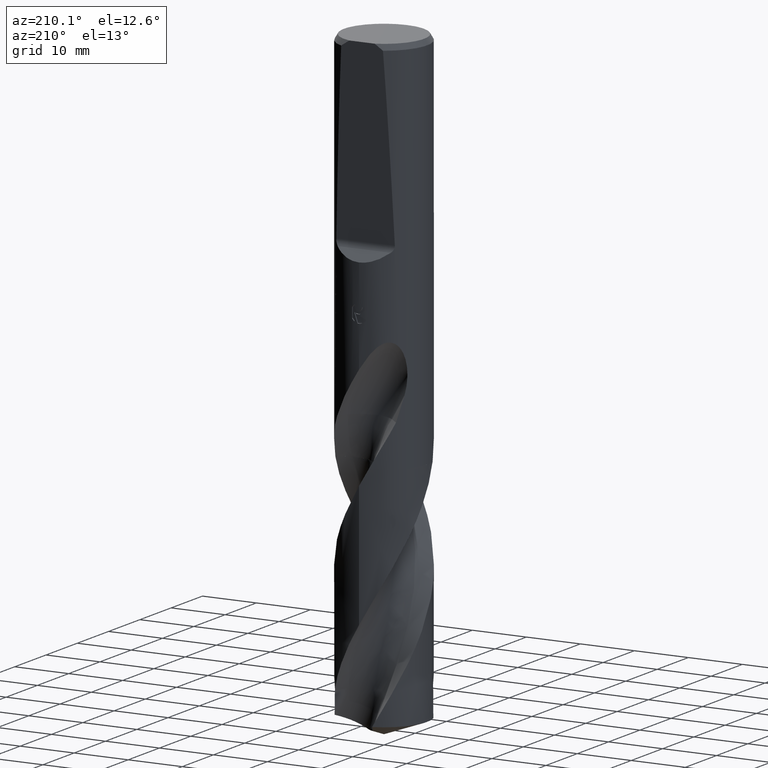
[diagram: clean part render]
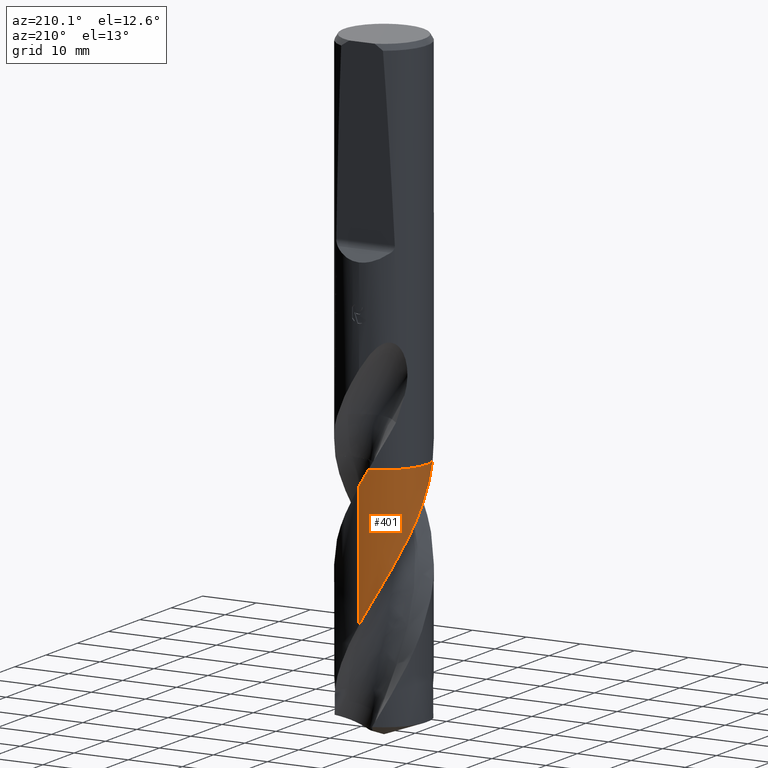
[diagram: same view with one face highlighted and labeled with its STEP entity id]
A machine part, auxiliary view. The second image highlights one B-rep face of the part: STEP entity #401.
In plain terms, the highlighted conical surface has half-angle 0 deg.
Its self-contained STEP definition (entity closure, byte-faithful):
#361=EDGE_CURVE('',#471,#485,#886,.T.);
#401=ADVANCED_FACE('',(#930),#931,.T.);
#471=VERTEX_POINT('',#1008);
#485=VERTEX_POINT('',#1023);
#507=EDGE_CURVE('',#485,#729,#1046,.T.);
#565=VERTEX_POINT('',#1107);
#599=EDGE_CURVE('',#729,#745,#1144,.T.);
#637=VERTEX_POINT('',#1186);
#699=EDGE_CURVE('',#565,#471,#1252,.T.);
#729=VERTEX_POINT('',#1286);
#733=EDGE_CURVE('',#637,#565,#1290,.T.);
#745=VERTEX_POINT('',#1305);
#761=EDGE_CURVE('',#745,#637,#1321,.T.);
#886=B_SPLINE_CURVE_WITH_KNOTS('',3,(#2675,#2676,#2677,#2678),.UNSPECIFIED.,.F.,.F.,(4,4),(0.0,0.013752877784012),.UNSPECIFIED.);
#930=FACE_OUTER_BOUND('',#3223,.T.);
#931=CONICAL_SURFACE('',#3224,7.99995,2.364723725352E-006);
#1008=CARTESIAN_POINT('',(-1.67981348176977,7.82154886684629,-69.8));
#1023=CARTESIAN_POINT('',(-1.67697244394199,7.82215850142622,-69.8049999999999));
#1046=B_SPLINE_CURVE_WITH_KNOTS('',3,(#3846,#3847,#3848,#3849,#3850,#3851,#3852,#3853,#3854,#3855,#3856,#3857,#3858,#3859,#3860,#3861,#3862,#3863,#3864,#3865,#3866,#3867,#3868,#3869,#3870,#3871,#3872,#3873,#3874,#3875,#3876,#3877,#3878,#3879,#3880,#3881,#3882,#3883,#3884,#3885,#3886,#3887,#3888,#3889,#3890,#3891,#3892,#3893,#3894,#3895,#3896,#3897),.UNSPECIFIED.,.F.,.F.,(4,2,2,2,2,2,2,2,2,2,2,2,2,2,2,2,2,2,2,2,2,2,2,2,2,4),(0.0,1.27051730286432,3.96646854480239,5.51157217282943,7.05404440528282,10.1371378918844,10.3290807501614,13.4034358372347,14.9439217900769,17.8075973009075,17.9859906336772,20.8432027542659,22.2753112592827,25.1362857660209,25.8509122014461,28.7245608353295,29.9842632062922,32.3474459365253,34.4169737224137,36.2289984814503,37.8143179372547,40.5895410475255,41.1098273184683,43.0617453367982,45.9921869063749,48.9211548549457),.UNSPECIFIED.);
#1107=CARTESIAN_POINT('',(-7.65231159553623,-2.33249378451943,-69.8));
#1144=LINE('',#4681,#4682);
#1186=CARTESIAN_POINT('',(-7.65315511599825,-2.32972465532846,-69.805));
#1252=CIRCLE('',#6820,7.9999);
#1286=CARTESIAN_POINT('',(5.72739119061951E-015,7.99990689616698,-72.7162675143948));
#1290=B_SPLINE_CURVE_WITH_KNOTS('',3,(#7104,#7105,#7106,#7107),.UNSPECIFIED.,.F.,.F.,(4,4),(0.0,0.0177522945239315),.UNSPECIFIED.);
#1305=CARTESIAN_POINT('',(1.89754420758428E-011,7.99996084194975,-95.5289885932862));
#1321=B_SPLINE_CURVE_WITH_KNOTS('',3,(#7406,#7407,#7408,#7409,#7410,#7411,#7412,#7413,#7414,#7415,#7416,#7417,#7418,#7419,#7420,#7421,#7422,#7423,#7424,#7425,#7426,#7427,#7428,#7429,#7430,#7431,#7432,#7433,#7434,#7435,#7436,#7437,#7438,#7439,#7440,#7441,#7442,#7443,#7444,#7445,#7446,#7447,#7448,#7449,#7450,#7451,#7452,#7453,#7454,#7455,#7456,#7457,#7458,#7459,#7460,#7461,#7462,#7463,#7464,#7465,#7466,#7467),.UNSPECIFIED.,.F.,.F.,(4,2,2,2,2,2,2,2,2,2,2,2,2,2,2,2,2,2,2,2,2,2,2,2,2,2,2,2,2,2,4),(0.0,4.03119896320147,4.51299643171253,6.34896058069356,7.569833306916,8.73994153396919,10.6008235458961,11.5670182466299,12.4807597280399,14.4082638178036,15.3786518693126,16.4731307652434,18.2962473498897,20.1690397273523,22.0952049830949,24.0103927203589,25.766254646335,27.2014697096268,27.3010410731199,30.0331241361555,32.2658099796229,34.3488900971072,35.2588120125713,38.6814882075598,38.832342711728,41.1686782478763,42.1379179458796,42.9852840426844,45.9588926378141,47.4431304472618,48.9243446498629),.UNSPECIFIED.);
#2675=CARTESIAN_POINT('',(-1.67981348176982,7.8215488668463,-69.8));
#2676=CARTESIAN_POINT('',(-1.67756141846702,7.82203254614609,-69.8039635847169));
#2677=CARTESIAN_POINT('',(-1.67530916830837,7.82251524805388,-69.8079271818838));
#2678=CARTESIAN_POINT('',(-1.67305673199951,7.82299697247804,-69.8118907925588));
#3223=EDGE_LOOP('',(#7701,#7702,#7703,#7704,#7705,#7706));
#3224=AXIS2_PLACEMENT_3D('',#7707,#7708,#7709);
#3846=CARTESIAN_POINT('',(-1.67849383798376,7.82183217243396,-69.8023225095045));
#3847=CARTESIAN_POINT('',(-1.4704371492189,7.86648012565926,-70.1684865570865));
#3848=CARTESIAN_POINT('',(-1.26086920143506,7.90276883897967,-70.5348819784031));
#3849=CARTESIAN_POINT('',(-0.603475236507624,7.98983352343572,-71.6782461498771));
#3850=CARTESIAN_POINT('',(-0.152242433013857,8.01117034564737,-72.4537500739582));
#3851=CARTESIAN_POINT('',(0.556961162588771,7.98468489946156,-73.6758638894698));
#3852=CARTESIAN_POINT('',(0.81472088483901,7.96251524980937,-74.1206847396728));
#3853=CARTESIAN_POINT('',(1.3267594956836,7.89334749033179,-75.0104099080499));
#3854=CARTESIAN_POINT('',(1.58068031788886,7.84644088291161,-75.4546065332027));
#3855=CARTESIAN_POINT('',(2.33385367731438,7.66927345604132,-76.7877371405339));
#3856=CARTESIAN_POINT('',(2.82341210749603,7.50288497591098,-77.6743698086454));
#3857=CARTESIAN_POINT('',(3.32291312463908,7.27722570277805,-78.6181108935414));
#3858=CARTESIAN_POINT('',(3.35210599830845,7.26382495392821,-78.673416650395));
#3859=CARTESIAN_POINT('',(3.8475102580408,7.03279119579346,-79.614709280393));
#3860=CARTESIAN_POINT('',(4.2917607497998,6.77084315983122,-80.4994487472376));
#3861=CARTESIAN_POINT('',(4.9161968868441,6.31635410265131,-81.8294598761166));
#3862=CARTESIAN_POINT('',(5.11715150864102,6.15467777257267,-82.2730724607415));
#3863=CARTESIAN_POINT('',(5.66828082201436,5.66560315823584,-83.5425205479753));
#3864=CARTESIAN_POINT('',(5.99741965364389,5.31597969596658,-84.3663396379129));
#3865=CARTESIAN_POINT('',(6.31176264142755,4.915437740202,-85.2430665309164));
#3866=CARTESIAN_POINT('',(6.33006359566202,4.89184756203063,-85.2944761180623));
#3867=CARTESIAN_POINT('',(6.63923196268416,4.48868534906526,-86.1694017419798));
#3868=CARTESIAN_POINT('',(6.89563558934732,4.08386508873248,-86.9919623199943));
#3869=CARTESIAN_POINT('',(7.22395989720431,3.44542519548851,-88.2282989020718));
#3870=CARTESIAN_POINT('',(7.32393190888616,3.22747062102742,-88.6407038211166));
#3871=CARTESIAN_POINT('',(7.59382243644842,2.56168501043691,-89.8782330733037));
#3872=CARTESIAN_POINT('',(7.73351929852918,2.10266927620526,-90.7015883078468));
#3873=CARTESIAN_POINT('',(7.85576082746143,1.51676008798964,-91.7322180976283));
#3874=CARTESIAN_POINT('',(7.87756009486117,1.39913887136389,-91.9381308903172));
#3875=CARTESIAN_POINT('',(7.97373244040805,0.806337042298322,-92.9725083487111));
#3876=CARTESIAN_POINT('',(8.00779074699412,0.325559950217122,-93.7997280737574));
#3877=CARTESIAN_POINT('',(7.9943547240745,-0.366211538356224,-94.9912166158297));
#3878=CARTESIAN_POINT('',(7.98192667129978,-0.576764012981701,-95.3540876027758));
#3879=CARTESIAN_POINT('',(7.92231727501749,-1.18012940022822,-96.3985480993691));
#3880=CARTESIAN_POINT('',(7.85429732890172,-1.57032906102446,-97.0791517982732));
#3881=CARTESIAN_POINT('',(7.67306861206464,-2.28987151403489,-98.3570025762126));
#3882=CARTESIAN_POINT('',(7.56673763753815,-2.61991000108871,-98.9528534196423));
#3883=CARTESIAN_POINT('',(7.3278637033378,-3.22395897252188,-100.071938681329));
#3884=CARTESIAN_POINT('',(7.20038873587797,-3.49942582832175,-100.593964426066));
#3885=CARTESIAN_POINT('',(6.9325893795096,-4.00115444396327,-101.57334118483));
#3886=CARTESIAN_POINT('',(6.79607239350315,-4.22887811731923,-102.02990977461));
#3887=CARTESIAN_POINT('',(6.3902009316168,-4.83536064456716,-103.287106747562));
#3888=CARTESIAN_POINT('',(6.09871598664392,-5.19819444686474,-104.085881652984));
#3889=CARTESIAN_POINT('',(5.71708612267639,-5.59662813284819,-105.035917625444));
#3890=CARTESIAN_POINT('',(5.65581758483874,-5.65853792326001,-105.185877281304));
#3891=CARTESIAN_POINT('',(5.35995788213228,-5.9478883358092,-105.898625423372));
#3892=CARTESIAN_POINT('',(5.11258122289744,-6.16182298630118,-106.461102687264));
#3893=CARTESIAN_POINT('',(4.46283272782344,-6.65759718653386,-107.868735786888));
#3894=CARTESIAN_POINT('',(4.04639222723573,-6.91859864991595,-108.711219138915));
#3895=CARTESIAN_POINT('',(3.17139742994246,-7.36086665146706,-110.400814118732));
#3896=CARTESIAN_POINT('',(2.71441280435184,-7.54139015727414,-111.243925128172));
#3897=CARTESIAN_POINT('',(2.24355385134965,-7.67896256769718,-112.08823812587));
#4681=CARTESIAN_POINT('',(-9.79720773085508E-016,7.99995,-90.9441190629352));
#4682=VECTOR('',#7910,1.0);
#6820=AXIS2_PLACEMENT_3D('',#7989,#7990,#7991);
#7104=CARTESIAN_POINT('',(-7.65490013211447,-2.32398462960369,-69.8153635195842));
#7105=CARTESIAN_POINT('',(-7.65403892292571,-2.32682129787016,-69.8102422279961));
#7106=CARTESIAN_POINT('',(-7.65317607750963,-2.32965768326373,-69.8051210543126));
#7107=CARTESIAN_POINT('',(-7.65231159553626,-2.33249378451941,-69.8));
#7406=CARTESIAN_POINT('',(7.46189764271833,2.88445550660688,-112.08823812587));
#7407=CARTESIAN_POINT('',(7.21896305262063,3.51290376905606,-110.925631610887));
#7408=CARTESIAN_POINT('',(6.89756025784077,4.1082519469634,-109.776819733825));
#7409=CARTESIAN_POINT('',(6.45843918671777,4.7217490330369,-108.47503485101));
#7410=CARTESIAN_POINT('',(6.41062660778394,4.78646028831958,-108.336015768115));
#7411=CARTESIAN_POINT('',(6.17587633496912,5.09435428257596,-107.667719959679));
#7412=CARTESIAN_POINT('',(5.97585841705735,5.32760760201709,-107.139714626044));
#7413=CARTESIAN_POINT('',(5.62088808110172,5.69624194863869,-106.259028075824));
#7414=CARTESIAN_POINT('',(5.47359521766105,5.83791184207687,-105.907619120124));
#7415=CARTESIAN_POINT('',(5.17499117302718,6.10389256234493,-105.218543493876));
#7416=CARTESIAN_POINT('',(5.02419676236537,6.22860172447748,-104.880839424982));
#7417=CARTESIAN_POINT('',(4.62192685480721,6.53715294073292,-104.00728460891));
#7418=CARTESIAN_POINT('',(4.36400498866502,6.71209268813819,-103.472304704355));
#7419=CARTESIAN_POINT('',(3.95747183384713,6.95443914894759,-102.657809133801));
#7420=CARTESIAN_POINT('',(3.8161486939609,7.03297473811203,-102.379570348416));
#7421=CARTESIAN_POINT('',(3.53693458006586,7.17725864948652,-101.837699312974));
#7422=CARTESIAN_POINT('',(3.39930101524696,7.24346015768628,-101.574034079029));
#7423=CARTESIAN_POINT('',(2.96529027462435,7.43710791142052,-100.754876298267));
#7424=CARTESIAN_POINT('',(2.66302607704546,7.55063106869839,-100.200670274124));
#7425=CARTESIAN_POINT('',(2.19923806033086,7.69345678573196,-99.3655588323523));
#7426=CARTESIAN_POINT('',(2.0426152000214,7.73650877999459,-99.0860465717514));
#7427=CARTESIAN_POINT('',(1.7070110818893,7.81787068684695,-98.4907305598656));
#7428=CARTESIAN_POINT('',(1.52763287479914,7.85489523422754,-98.1746279762158));
#7429=CARTESIAN_POINT('',(1.04620220369326,7.93713063756752,-97.3331635242917));
#7430=CARTESIAN_POINT('',(0.742566596394302,7.971279860467,-96.8086282175112));
#7431=CARTESIAN_POINT('',(0.124316528206405,8.00514620501066,-95.7430282691163));
#7432=CARTESIAN_POINT('',(-0.189506314042134,8.0038481433281,-95.2022025127605));
#7433=CARTESIAN_POINT('',(-0.823716228664267,7.96395763415118,-94.1070215429496));
#7434=CARTESIAN_POINT('',(-1.14391159680448,7.92431589712829,-93.5532377610765));
#7435=CARTESIAN_POINT('',(-1.77629073640969,7.80684848522145,-92.4462798501289));
#7436=CARTESIAN_POINT('',(-2.0875759753025,7.72941062566208,-91.8934958876168));
#7437=CARTESIAN_POINT('',(-2.67322739401067,7.54580866831338,-90.8357237252769));
#7438=CARTESIAN_POINT('',(-2.94844656074374,7.44259419554482,-90.3309408392632));
#7439=CARTESIAN_POINT('',(-3.43744659941548,7.22778025283759,-89.4118586671332));
#7440=CARTESIAN_POINT('',(-3.6526725832891,7.12141547993718,-88.9989717024944));
#7441=CARTESIAN_POINT('',(-3.87713066141335,6.99765989532655,-88.5565985781616));
#7442=CARTESIAN_POINT('',(-3.89166268720347,6.98958848922146,-88.527904241546));
#7443=CARTESIAN_POINT('',(-4.30481492159411,6.75842382302212,-87.7108917279371));
#7444=CARTESIAN_POINT('',(-4.68390608455201,6.50149329367393,-86.9268091455736));
#7445=CARTESIAN_POINT('',(-5.32966075502761,5.97775177435616,-85.4954113969305));
#7446=CARTESIAN_POINT('',(-5.60311065852473,5.72223242192568,-84.8504873762499));
#7447=CARTESIAN_POINT('',(-6.09538065018624,5.19297314361614,-83.6062171628789));
#7448=CARTESIAN_POINT('',(-6.31592830609758,4.92234370102565,-83.0074197362024));
#7449=CARTESIAN_POINT('',(-6.60632642157541,4.5142557409048,-82.1443244614079));
#7450=CARTESIAN_POINT('',(-6.69098718384164,4.38778889721568,-81.8816272277237));
#7451=CARTESIAN_POINT('',(-7.07662632538584,3.77460319479915,-80.6326268012535));
#7452=CARTESIAN_POINT('',(-7.32829345791072,3.25909541793033,-79.6537675757474));
#7453=CARTESIAN_POINT('',(-7.53134337580365,2.6978205421239,-78.6234986881341));
#7454=CARTESIAN_POINT('',(-7.53980425554848,2.67408326888496,-78.5799953138263));
#7455=CARTESIAN_POINT('',(-7.67769465573289,2.28135494803568,-77.8617070324091));
#7456=CARTESIAN_POINT('',(-7.78013155367075,1.90308776979234,-77.1897198350102));
#7457=CARTESIAN_POINT('',(-7.88534566886016,1.35881824330279,-76.2358872356715));
#7458=CARTESIAN_POINT('',(-7.91130528475585,1.19842970543251,-75.9563484983947));
#7459=CARTESIAN_POINT('',(-7.95076126653137,0.896744138476885,-75.4319361340851));
#7460=CARTESIAN_POINT('',(-7.96540869319905,0.755642268143355,-75.1870776340332));
#7461=CARTESIAN_POINT('',(-8.01452079603129,0.117805377060757,-74.0841174404633));
#7462=CARTESIAN_POINT('',(-8.00634624659293,-0.381388847466545,-73.2295836676208));
#7463=CARTESIAN_POINT('',(-7.92442663230466,-1.12421365459647,-71.9436452783554));
#7464=CARTESIAN_POINT('',(-7.88566040220403,-1.36978563388419,-71.5160146585465));
#7465=CARTESIAN_POINT('',(-7.78578721649113,-1.85504377986996,-70.6598687830174));
#7466=CARTESIAN_POINT('',(-7.72502530847539,-2.09365807275655,-70.2312379627965));
#7467=CARTESIAN_POINT('',(-7.65308960804268,-2.32993983521996,-69.8046114754608));
#7701=ORIENTED_EDGE('',*,*,#599,.T.);
#7702=ORIENTED_EDGE('',*,*,#761,.T.);
#7703=ORIENTED_EDGE('',*,*,#733,.T.);
#7704=ORIENTED_EDGE('',*,*,#699,.T.);
#7705=ORIENTED_EDGE('',*,*,#361,.T.);
#7706=ORIENTED_EDGE('',*,*,#507,.T.);
#7707=CARTESIAN_POINT('',(0.0,0.0,-90.9441190629352));
#7708=DIRECTION('',(0.0,-0.0,-1.0));
#7709=DIRECTION('',(0.0,1.0,0.0));
#7910=DIRECTION('',(-2.89585569909788E-022,2.36472372534979E-006,-0.999999999997204));
#7989=CARTESIAN_POINT('',(0.0,0.0,-69.8));
#7990=DIRECTION('',(0.0,0.0,-1.0));
#7991=DIRECTION('',(0.0,1.0,0.0));